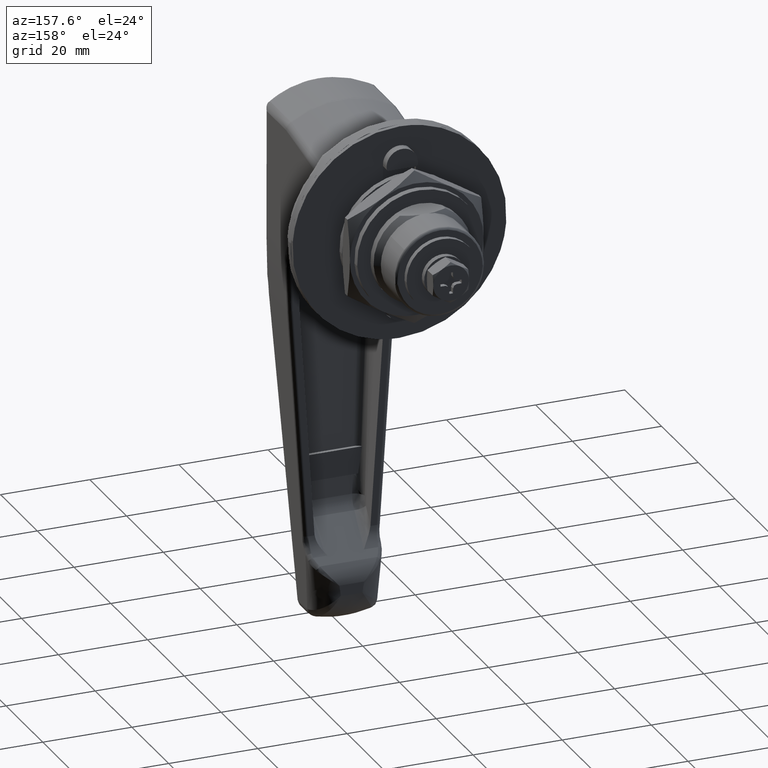
[diagram: clean part render]
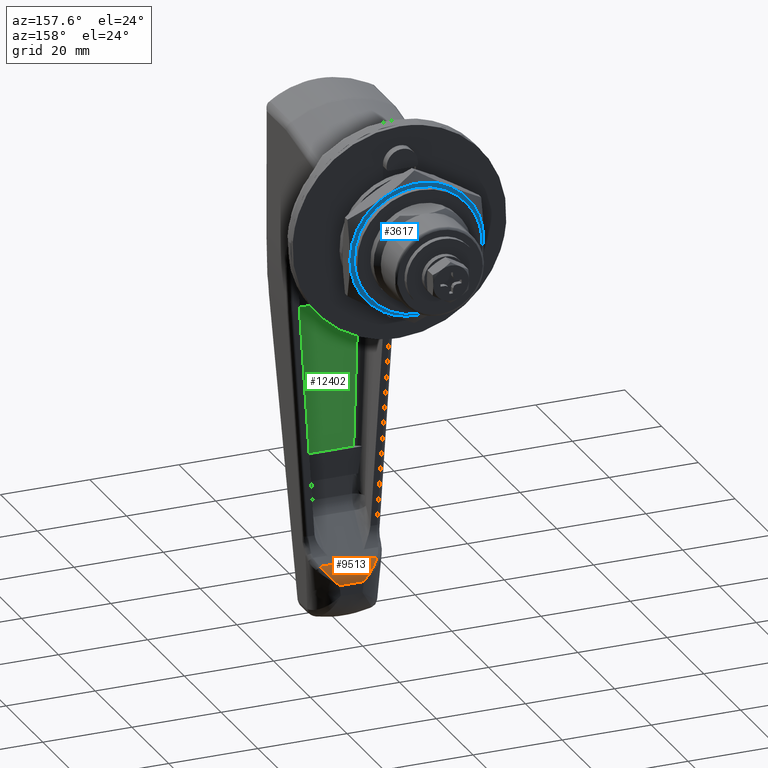
[diagram: same view with three faces highlighted in distinct colors, each labeled with its STEP entity id]
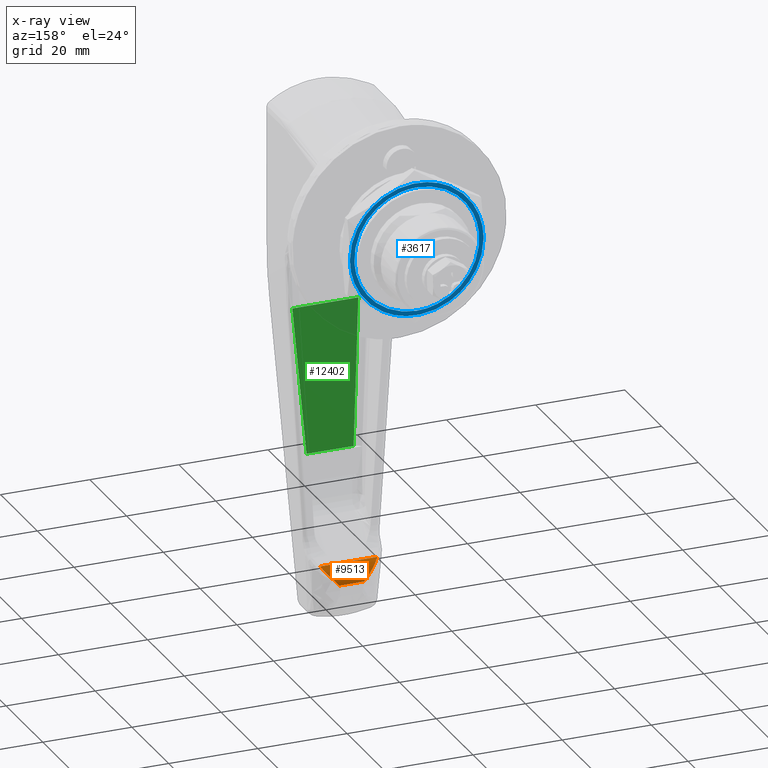
[diagram: x-ray of the same camera — body ghosted, the three highlighted faces saturated]
A machine part, auxiliary view with three faces highlighted in distinct colors.
The next image is the same camera in x-ray (body ghosted, the three faces saturated) — at least one of them is partly hidden behind the body in this view.
Their STEP definitions:

[orange] entity #9513 — the highlighted face is a freeform B-spline surface patch.
#5278=CARTESIAN_POINT('',(-27.757359312880450,6.411677458256770,-86.242639687119507));
#5279=VERTEX_POINT('',#5278);
#5365=CARTESIAN_POINT('',(-26.0,2.774876509063665,-90.485280374238499));
#5366=VERTEX_POINT('',#5365);
#5367=CARTESIAN_POINT('',(-26.0,2.774876509063650,-90.485280374238499));
#5368=CARTESIAN_POINT('',(-26.0,2.795644645224507,-90.462373951188638));
#5369=CARTESIAN_POINT('',(-26.000133062552141,2.816746066690265,-90.439091339148007));
#5370=CARTESIAN_POINT('',(-26.000668630474269,2.858707925832639,-90.392761118582968));
#5371=CARTESIAN_POINT('',(-26.001070676191080,2.879682286763886,-90.369590051400294));
#5372=CARTESIAN_POINT('',(-26.002680059634649,2.942574586056809,-90.300070589647220));
#5373=CARTESIAN_POINT('',(-26.004290577691719,2.984463876743994,-90.253713587383601));
#5374=CARTESIAN_POINT('',(-26.010741209984829,3.110012310507166,-90.114608335437907));
#5375=CARTESIAN_POINT('',(-26.017209172647931,3.193624767385499,-90.021744728946700));
#5376=CARTESIAN_POINT('',(-26.043073610058919,3.443144782231266,-89.743907662277621));
#5377=CARTESIAN_POINT('',(-26.068906676870618,3.607886685259840,-89.559523750588326));
#5378=CARTESIAN_POINT('',(-26.172517099167621,4.097080552566845,-89.008792522573259));
#5379=CARTESIAN_POINT('',(-26.276084603024032,4.416575162050778,-88.644847040100814));
#5380=CARTESIAN_POINT('',(-26.453931950677909,4.806023012466552,-88.193877018681007));
#5381=CARTESIAN_POINT('',(-26.491946403160721,4.883410643135107,-88.103882608548787));
#5382=CARTESIAN_POINT('',(-26.573115139093819,5.037113304242332,-87.924298052832640));
#5383=CARTESIAN_POINT('',(-26.616269587806411,5.113397485400093,-87.834741447848046));
#5384=CARTESIAN_POINT('',(-26.752605583977910,5.338542581584339,-87.569034354325865));
#5385=CARTESIAN_POINT('',(-26.852971484623311,5.484372755446534,-87.395065453569785));
#5386=CARTESIAN_POINT('',(-27.073949482456840,5.766741649489855,-87.053756355287589));
#5387=CARTESIAN_POINT('',(-27.194549929978511,5.903286889898715,-86.886413303427744));
#5388=CARTESIAN_POINT('',(-27.458215508615300,6.165856528139006,-86.558909505019301));
#5389=CARTESIAN_POINT('',(-27.601256312101071,6.291894407471209,-86.398742687898960));
#5390=CARTESIAN_POINT('',(-27.757359312880450,6.411677458256800,-86.242639687119507));
#5391=B_SPLINE_CURVE_WITH_KNOTS('',3,(#5367,#5368,#5369,#5370,#5371,#5372,#5373,#5374,#5375,#5376,#5377,#5378,#5379,#5380,#5381,#5382,#5383,#5384,#5385,#5386,#5387,#5388,#5389,#5390),.UNSPECIFIED.,.F.,.U.,(4,2,2,2,2,2,2,2,2,2,2,4),(0.0,0.015625000000003,0.031250000000007,0.062500000000009,0.125000000000007,0.250000000000004,0.499999999999998,0.562499999999996,0.624999999999994,0.749999999999996,0.874999999999998,1.0),.UNSPECIFIED.);
#5392=EDGE_CURVE('',#5366,#5279,#5391,.T.);
#6087=CARTESIAN_POINT('',(-27.757359312880450,-6.411677458256881,-86.242639687119507));
#6088=VERTEX_POINT('',#6087);
#6177=CARTESIAN_POINT('',(-26.0,-2.774876509063720,-90.485280374238499));
#6178=VERTEX_POINT('',#6177);
#6205=CARTESIAN_POINT('',(-27.757359312880450,-6.411677458256870,-86.242639687119507));
#6206=CARTESIAN_POINT('',(-27.601251087585229,-6.291890398525629,-86.398747912414777));
#6207=CARTESIAN_POINT('',(-27.458216120292999,-6.165856151888097,-86.558909796060860));
#6208=CARTESIAN_POINT('',(-27.194572907979889,-5.903310757689154,-86.886383711311879));
#6209=CARTESIAN_POINT('',(-27.073989097379961,-5.766786099153371,-87.053701818750625));
#6210=CARTESIAN_POINT('',(-26.853047806891251,-5.484476448771832,-87.394940924102173));
#6211=CARTESIAN_POINT('',(-26.752702027908491,-5.338684923457935,-87.568864779636485));
#6212=CARTESIAN_POINT('',(-26.616394529860859,-5.113612261195423,-87.834488770966601));
#6213=CARTESIAN_POINT('',(-26.573252432596870,-5.037362480092886,-87.924006069059942));
#6214=CARTESIAN_POINT('',(-26.492051958009380,-4.883621297268697,-88.103637329318602));
#6215=CARTESIAN_POINT('',(-26.454023920146781,-4.806215579998844,-88.193653455217500));
#6216=CARTESIAN_POINT('',(-26.276117864666421,-4.416683252416073,-88.644724173144951));
#6217=CARTESIAN_POINT('',(-26.172532017962961,-4.097140071990228,-89.008725239793506));
#6218=CARTESIAN_POINT('',(-26.068909111971980,-3.607903641381611,-89.559504799581418));
#6219=CARTESIAN_POINT('',(-26.043074562554981,-3.443152608740401,-89.743898932300837));
#6220=CARTESIAN_POINT('',(-26.017209320625849,-3.193626876153690,-90.021742388496236));
#6221=CARTESIAN_POINT('',(-26.010741309971799,-3.110013985836814,-90.114606477779304));
#6222=CARTESIAN_POINT('',(-26.004290589795868,-2.984464247681337,-90.253713177105155));
#6223=CARTESIAN_POINT('',(-26.002680053768952,-2.942574522960433,-90.300070659815802));
#6224=CARTESIAN_POINT('',(-26.001070660072511,-2.879681573809319,-90.369590839268426));
#6225=CARTESIAN_POINT('',(-26.000668613710111,-2.858706996015824,-90.392762145678205));
#6226=CARTESIAN_POINT('',(-26.000133050032780,-2.816744702117587,-90.439092845295676));
#6227=CARTESIAN_POINT('',(-26.0,-2.795641328437356,-90.462377609481820));
#6228=CARTESIAN_POINT('',(-26.0,-2.774876509063720,-90.485280374238499));
#6229=B_SPLINE_CURVE_WITH_KNOTS('',3,(#6205,#6206,#6207,#6208,#6209,#6210,#6211,#6212,#6213,#6214,#6215,#6216,#6217,#6218,#6219,#6220,#6221,#6222,#6223,#6224,#6225,#6226,#6227,#6228),.UNSPECIFIED.,.F.,.U.,(4,2,2,2,2,2,2,2,2,2,2,4),(0.0,0.125000000000001,0.250000000000002,0.375000000000003,0.437500000000004,0.500000000000005,0.750000000000002,0.875000000000001,0.937499999999998,0.968749999999999,0.984375000000000,1.0),.UNSPECIFIED.);
#6230=EDGE_CURVE('',#6088,#6178,#6229,.T.);
#9485=CARTESIAN_POINT('',(-26.002056050146670,-6.732261331169722,-90.642342064086137));
#9486=CARTESIAN_POINT('',(-26.002056050146670,6.740275927992433,-90.642342064086137));
#9487=CARTESIAN_POINT('',(-25.930985166570018,-6.732261331169723,-87.928254519422509));
#9488=CARTESIAN_POINT('',(-25.930985166570018,6.740275927992434,-87.928254519422509));
#9489=CARTESIAN_POINT('',(-27.922874868935317,-6.732261331169721,-86.083343225023313));
#9490=CARTESIAN_POINT('',(-27.922874868935317,6.740275927992433,-86.083343225023313));
#9498=(BOUNDED_SURFACE()B_SPLINE_SURFACE(1,2,((#9485,#9487,#9489),(#9486,#9488,#9490)),.UNSPECIFIED.,.F.,.F.,.U.)B_SPLINE_SURFACE_WITH_KNOTS((2,2),(3,3),(0.0,13.472537259162159),(0.0,5.177316844101731),.UNSPECIFIED.)GEOMETRIC_REPRESENTATION_ITEM()RATIONAL_B_SPLINE_SURFACE(((1.0,0.907119184911090,0.991354234791969),(1.0,0.907119184911090,0.991354234791969)))REPRESENTATION_ITEM('')SURFACE());
#9499=CARTESIAN_POINT('',(-26.0,2.774876509063665,-90.485280374238499));
#9500=CARTESIAN_POINT('',(-26.0,-2.774876509063720,-90.485280374238499));
#9501=QUASI_UNIFORM_CURVE('',1,(#9499,#9500),.UNSPECIFIED.,.F.,.U.);
#9502=EDGE_CURVE('',#5366,#6178,#9501,.T.);
#9503=ORIENTED_EDGE('',*,*,#9502,.F.);
#9504=ORIENTED_EDGE('',*,*,#5392,.T.);
#9505=CARTESIAN_POINT('',(-27.757359312880450,-6.411677458256881,-86.242639687119507));
#9506=CARTESIAN_POINT('',(-27.757359312880450,6.411677458256770,-86.242639687119507));
#9507=QUASI_UNIFORM_CURVE('',1,(#9505,#9506),.UNSPECIFIED.,.F.,.U.);
#9508=EDGE_CURVE('',#6088,#5279,#9507,.T.);
#9509=ORIENTED_EDGE('',*,*,#9508,.F.);
#9510=ORIENTED_EDGE('',*,*,#6230,.T.);
#9511=EDGE_LOOP('',(#9503,#9504,#9509,#9510));
#9512=FACE_OUTER_BOUND('',#9511,.T.);
#9513=ADVANCED_FACE('',(#9512),#9498,.T.);

[blue] entity #3617 — the highlighted face is a freeform B-spline surface patch.
#2546=CARTESIAN_POINT('',(76.776972999999998,13.902133369073610,1.652479285343706));
#2547=VERTEX_POINT('',#2546);
#2548=CARTESIAN_POINT('',(76.776972999999998,0.0,-14.0));
#2549=VERTEX_POINT('',#2548);
#2550=CARTESIAN_POINT('',(76.776972999999998,13.902133369073612,1.652479285343706));
#2551=CARTESIAN_POINT('',(76.776972999999998,14.0,0.829137675277405));
#2552=CARTESIAN_POINT('',(76.776972999999998,14.0,0.0));
#2553=CARTESIAN_POINT('',(76.776972999999998,13.999999999999998,-13.999999999999998));
#2554=CARTESIAN_POINT('',(76.776972999999998,0.0,-14.0));
#2562=(BOUNDED_CURVE()B_SPLINE_CURVE(2,(#2550,#2551,#2552,#2553,#2554),.UNSPECIFIED.,.F.,.U.)B_SPLINE_CURVE_WITH_KNOTS((3,2,3),(0.229562473512019,0.250000000000000,0.500000000000000),.UNSPECIFIED.)CURVE()GEOMETRIC_REPRESENTATION_ITEM()RATIONAL_B_SPLINE_CURVE((0.956026754180781,0.976055948329401,1.0,0.707106781186547,1.0))REPRESENTATION_ITEM(''));
#2563=EDGE_CURVE('',#2547,#2549,#2562,.T.);
#2604=CARTESIAN_POINT('',(76.776972999995252,-13.973888682470440,-0.854654953368379));
#2605=VERTEX_POINT('',#2604);
#2611=CARTESIAN_POINT('',(76.776972999999998,0.0,-14.0));
#2612=CARTESIAN_POINT('',(76.776972999999998,-13.169908164747410,-14.000000000000002));
#2613=CARTESIAN_POINT('',(76.776972999995252,-13.973888682470440,-0.854654953368379));
#2621=(BOUNDED_CURVE()B_SPLINE_CURVE(2,(#2611,#2612,#2613),.UNSPECIFIED.,.F.,.U.)B_SPLINE_CURVE_WITH_KNOTS((3,3),(0.500000000000000,0.739333265999439),.UNSPECIFIED.)CURVE()GEOMETRIC_REPRESENTATION_ITEM()RATIONAL_B_SPLINE_CURVE((1.0,0.719603637409152,0.976072692684149))REPRESENTATION_ITEM(''));
#2622=EDGE_CURVE('',#2549,#2605,#2621,.T.);
#2645=CARTESIAN_POINT('',(76.776972999999998,0.0,14.0));
#2646=VERTEX_POINT('',#2645);
#2647=CARTESIAN_POINT('',(76.776972999999998,0.0,14.0));
#2648=CARTESIAN_POINT('',(76.776972999999998,12.434443363050571,13.999999999999993));
#2649=CARTESIAN_POINT('',(76.776972999999998,13.902133369073612,1.652479285343706));
#2657=(BOUNDED_CURVE()B_SPLINE_CURVE(2,(#2647,#2648,#2649),.UNSPECIFIED.,.F.,.U.)B_SPLINE_CURVE_WITH_KNOTS((3,3),(0.0,0.229562473512019),.UNSPECIFIED.)CURVE()GEOMETRIC_REPRESENTATION_ITEM()RATIONAL_B_SPLINE_CURVE((1.0,0.731050832857147,0.956026754180781))REPRESENTATION_ITEM(''));
#2658=EDGE_CURVE('',#2646,#2547,#2657,.T.);
#2660=CARTESIAN_POINT('',(76.776972999995252,-13.973888682470440,-0.854654953368379));
#2661=CARTESIAN_POINT('',(76.776973000000012,-14.000000000000004,-0.427726351633926));
#2662=CARTESIAN_POINT('',(76.776972999999998,-14.0,0.0));
#2663=CARTESIAN_POINT('',(76.776972999999998,-13.999999999999998,13.999999999999998));
#2664=CARTESIAN_POINT('',(76.776972999999998,0.0,14.0));
#2672=(BOUNDED_CURVE()B_SPLINE_CURVE(2,(#2660,#2661,#2662,#2663,#2664),.UNSPECIFIED.,.F.,.U.)B_SPLINE_CURVE_WITH_KNOTS((3,2,3),(0.739333265999439,0.750000000000000,1.0),.UNSPECIFIED.)CURVE()GEOMETRIC_REPRESENTATION_ITEM()RATIONAL_B_SPLINE_CURVE((0.976072692684149,0.987503143777395,1.0,0.707106781186547,1.0))REPRESENTATION_ITEM(''));
#2673=EDGE_CURVE('',#2605,#2646,#2672,.T.);
#2952=CARTESIAN_POINT('',(76.776972999999998,-15.0,0.0));
#2953=VERTEX_POINT('',#2952);
#3033=CARTESIAN_POINT('',(76.776972999999998,-7.499999950838660,-12.990381028383259));
#3034=VERTEX_POINT('',#3033);
#3111=CARTESIAN_POINT('',(76.776972999999998,7.499999950838690,-12.990381028383201));
#3112=VERTEX_POINT('',#3111);
#3192=CARTESIAN_POINT('',(76.776972999999998,15.0,0.0));
#3193=VERTEX_POINT('',#3192);
#3273=CARTESIAN_POINT('',(76.776972999999998,7.499999950838810,12.990381028383201));
#3274=VERTEX_POINT('',#3273);
#3343=CARTESIAN_POINT('',(76.776972999999998,-7.499999950838790,12.990381028383259));
#3344=VERTEX_POINT('',#3343);
#3522=CARTESIAN_POINT('',(76.776972999999998,-7.499999950838660,-12.990381028383259));
#3523=CARTESIAN_POINT('',(76.776972999999998,-15.000000487709663,-8.660254324154245));
#3524=CARTESIAN_POINT('',(76.776972999999998,-15.0,0.0));
#3532=(BOUNDED_CURVE()B_SPLINE_CURVE(2,(#3522,#3523,#3524),.UNSPECIFIED.,.F.,.U.)CURVE()GEOMETRIC_REPRESENTATION_ITEM()QUASI_UNIFORM_CURVE()RATIONAL_B_SPLINE_CURVE((1.0,0.866025403311383,1.0))REPRESENTATION_ITEM(''));
#3533=EDGE_CURVE('',#3034,#2953,#3532,.T.);
#3538=CARTESIAN_POINT('',(76.776972999999998,-16.498499941854181,-16.498499908124710));
#3539=CARTESIAN_POINT('',(76.776972999999998,-16.498499941854181,16.498500981008391));
#3540=CARTESIAN_POINT('',(76.776972999999998,16.498500746516889,-16.498499908124710));
#3541=CARTESIAN_POINT('',(76.776972999999998,16.498500746516889,16.498500981008391));
#3542=B_SPLINE_SURFACE_WITH_KNOTS('',1,1,((#3538,#3540),(#3539,#3541)),.UNSPECIFIED.,.F.,.F.,.U.,(2,2),(2,2),(0.0,32.997000889133112),(0.0,32.997000688371060),.UNSPECIFIED.);
#3543=CARTESIAN_POINT('',(76.776972999999998,7.499999950838810,12.990381028383201));
#3544=CARTESIAN_POINT('',(76.776972999999984,15.000000487709675,8.660254324154147));
#3545=CARTESIAN_POINT('',(76.776972999999998,15.0,0.0));
#3553=(BOUNDED_CURVE()B_SPLINE_CURVE(2,(#3543,#3544,#3545),.UNSPECIFIED.,.F.,.U.)CURVE()GEOMETRIC_REPRESENTATION_ITEM()QUASI_UNIFORM_CURVE()RATIONAL_B_SPLINE_CURVE((1.0,0.866025403311386,1.0))REPRESENTATION_ITEM(''));
#3554=EDGE_CURVE('',#3274,#3193,#3553,.T.);
#3555=ORIENTED_EDGE('',*,*,#3554,.F.);
#3556=CARTESIAN_POINT('',(76.776972999999998,-7.499999950838790,12.990381028383259));
#3557=CARTESIAN_POINT('',(76.776972999999998,1.625089E-014,17.320508591541987));
#3558=CARTESIAN_POINT('',(76.776972999999998,7.499999950838810,12.990381028383201));
#3566=(BOUNDED_CURVE()B_SPLINE_CURVE(2,(#3556,#3557,#3558),.UNSPECIFIED.,.F.,.U.)CURVE()GEOMETRIC_REPRESENTATION_ITEM()QUASI_UNIFORM_CURVE()RATIONAL_B_SPLINE_CURVE((1.0,0.866025404730544,1.0))REPRESENTATION_ITEM(''));
#3567=EDGE_CURVE('',#3344,#3274,#3566,.T.);
#3568=ORIENTED_EDGE('',*,*,#3567,.F.);
#3569=CARTESIAN_POINT('',(76.776972999999998,-15.0,0.0));
#3570=CARTESIAN_POINT('',(76.776972999999998,-15.000000487709675,8.660254324154193));
#3571=CARTESIAN_POINT('',(76.776972999999998,-7.499999950838790,12.990381028383259));
#3579=(BOUNDED_CURVE()B_SPLINE_CURVE(2,(#3569,#3570,#3571),.UNSPECIFIED.,.F.,.U.)CURVE()GEOMETRIC_REPRESENTATION_ITEM()QUASI_UNIFORM_CURVE()RATIONAL_B_SPLINE_CURVE((1.0,0.866025403311385,1.0))REPRESENTATION_ITEM(''));
#3580=EDGE_CURVE('',#2953,#3344,#3579,.T.);
#3581=ORIENTED_EDGE('',*,*,#3580,.F.);
#3582=ORIENTED_EDGE('',*,*,#3533,.F.);
#3583=CARTESIAN_POINT('',(76.776972999999998,7.499999950838690,-12.990381028383201));
#3584=CARTESIAN_POINT('',(76.776972999999998,2.361306E-014,-17.320508591541852));
#3585=CARTESIAN_POINT('',(76.776972999999998,-7.499999950838660,-12.990381028383259));
#3593=(BOUNDED_CURVE()B_SPLINE_CURVE(2,(#3583,#3584,#3585),.UNSPECIFIED.,.F.,.U.)CURVE()GEOMETRIC_REPRESENTATION_ITEM()QUASI_UNIFORM_CURVE()RATIONAL_B_SPLINE_CURVE((1.0,0.866025404730548,1.0))REPRESENTATION_ITEM(''));
#3594=EDGE_CURVE('',#3112,#3034,#3593,.T.);
#3595=ORIENTED_EDGE('',*,*,#3594,.F.);
#3596=CARTESIAN_POINT('',(76.776972999999998,15.0,0.0));
#3597=CARTESIAN_POINT('',(76.776972999999998,15.000000487709661,-8.660254324154192));
#3598=CARTESIAN_POINT('',(76.776972999999998,7.499999950838690,-12.990381028383201));
#3606=(BOUNDED_CURVE()B_SPLINE_CURVE(2,(#3596,#3597,#3598),.UNSPECIFIED.,.F.,.U.)CURVE()GEOMETRIC_REPRESENTATION_ITEM()QUASI_UNIFORM_CURVE()RATIONAL_B_SPLINE_CURVE((1.0,0.866025403311384,1.0))REPRESENTATION_ITEM(''));
#3607=EDGE_CURVE('',#3193,#3112,#3606,.T.);
#3608=ORIENTED_EDGE('',*,*,#3607,.F.);
#3609=EDGE_LOOP('',(#3555,#3568,#3581,#3582,#3595,#3608));
#3610=FACE_OUTER_BOUND('',#3609,.T.);
#3611=ORIENTED_EDGE('',*,*,#2622,.T.);
#3612=ORIENTED_EDGE('',*,*,#2673,.T.);
#3613=ORIENTED_EDGE('',*,*,#2658,.T.);
#3614=ORIENTED_EDGE('',*,*,#2563,.T.);
#3615=EDGE_LOOP('',(#3611,#3612,#3613,#3614));
#3616=FACE_BOUND('',#3615,.T.);
#3617=ADVANCED_FACE('',(#3610,#3616),#3542,.F.);

[green] entity #12402 — the highlighted face is a freeform B-spline surface patch.
#10383=CARTESIAN_POINT('',(-37.789886099424102,-5.289346666034010,-65.0));
#10384=VERTEX_POINT('',#10383);
#10385=CARTESIAN_POINT('',(-37.789886099424102,5.289346666033980,-65.0));
#10386=VERTEX_POINT('',#10385);
#10387=CARTESIAN_POINT('',(-37.789886099424102,-5.289346666034010,-65.0));
#10388=CARTESIAN_POINT('',(-37.789886099424102,5.289346666033980,-65.0));
#10389=QUASI_UNIFORM_CURVE('',1,(#10387,#10388),.UNSPECIFIED.,.F.,.U.);
#10390=EDGE_CURVE('',#10384,#10386,#10389,.T.);
#10676=CARTESIAN_POINT('',(-40.372847546967002,7.400885188629251,-32.706838555260312));
#10677=VERTEX_POINT('',#10676);
#11200=CARTESIAN_POINT('',(-40.372847546967002,-7.400885188629251,-32.706838555260312));
#11201=VERTEX_POINT('',#11200);
#11707=CARTESIAN_POINT('',(-40.372847546967002,7.400885188629251,-32.706838555260312));
#11708=CARTESIAN_POINT('',(-40.372847546967002,-7.400885188629251,-32.706838555260312));
#11709=QUASI_UNIFORM_CURVE('',1,(#11707,#11708),.UNSPECIFIED.,.F.,.U.);
#11710=EDGE_CURVE('',#10677,#11201,#11709,.T.);
#12348=CARTESIAN_POINT('',(-40.372847546967002,7.400885188629251,-32.706838555260312));
#12349=CARTESIAN_POINT('',(-37.789886099424102,5.289346666033980,-65.0));
#12350=QUASI_UNIFORM_CURVE('',1,(#12348,#12349),.UNSPECIFIED.,.F.,.U.);
#12351=EDGE_CURVE('',#10677,#10386,#12350,.T.);
#12375=CARTESIAN_POINT('',(-37.789886099424102,-5.289346666034010,-65.0));
#12376=CARTESIAN_POINT('',(-40.372847546967002,-7.400885188629251,-32.706838555260312));
#12377=QUASI_UNIFORM_CURVE('',1,(#12375,#12376),.UNSPECIFIED.,.F.,.U.);
#12378=EDGE_CURVE('',#10384,#11201,#12377,.T.);
#12391=CARTESIAN_POINT('',(-40.501866635994453,-8.140233590284611,-31.093793081670309));
#12392=CARTESIAN_POINT('',(-37.660867102770553,-8.140233590284611,-66.613044318696552));
#12393=CARTESIAN_POINT('',(-40.501866635994453,8.140233987299029,-31.093793081670309));
#12394=CARTESIAN_POINT('',(-37.660867102770553,8.140233987299029,-66.613044318696552));
#12395=B_SPLINE_SURFACE_WITH_KNOTS('',1,1,((#12391,#12393),(#12392,#12394)),.UNSPECIFIED.,.F.,.F.,.U.,(2,2),(2,2),(0.0,35.632688458587687),(0.0,16.280467577583639),.UNSPECIFIED.);
#12396=ORIENTED_EDGE('',*,*,#12378,.F.);
#12397=ORIENTED_EDGE('',*,*,#10390,.T.);
#12398=ORIENTED_EDGE('',*,*,#12351,.F.);
#12399=ORIENTED_EDGE('',*,*,#11710,.T.);
#12400=EDGE_LOOP('',(#12396,#12397,#12398,#12399));
#12401=FACE_OUTER_BOUND('',#12400,.T.);
#12402=ADVANCED_FACE('',(#12401),#12395,.T.);